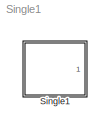
MODEL Single1
KIND model
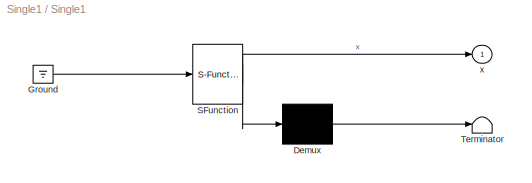
BLOCK [SubSystem] Single1
  MaskDescription = Stateflow diagram
  MaskDisplay = plot(sf('Private','sfblk','xIcon'),sf('Private','sfblk','yIcon'));text(0.5,0,sf('Private', 'sfblk', 'tIcon'),'HorizontalAl','Center','VerticalAl','Bottom');
  MaskIconFrame = off
  MaskIconOpaque = off
  MaskIconRotate = none
  MaskIconUnits = autoscale
  MaskSelfModifiable = on
  MaskType = Stateflow
  MinAlgLoopOccurrences = off
  Ports = [0, 1]
  RTWSystemCode = Auto
  TreatAsAtomicUnit = off
BLOCK [Demux] Single1/ Demux 
  Outputs = 1
  Ports = [1, 1]
BLOCK [Ground] Single1/ Ground 
BLOCK [S-Function] Single1/ SFunction 
  FunctionName = sf_sfun
  PortCounts = [1 2]
  Ports = [1, 2]
  Tag = Stateflow S-Function Single1 1
BLOCK [Terminator] Single1/ Terminator 
BLOCK [Outport] Single1/x
  IconDisplay = Port number
LINE Single1/ Demux :1 -> Single1/ Terminator :1
LINE Single1/ Ground :1 -> Single1/ SFunction :1
LINE Single1/ SFunction :1 -> Single1/ Demux :1
LINE Single1/ SFunction :2 -> Single1/x:1
CHART Single1 states=1 transitions=0
  STATE_LABEL 'A/\\ndu: x++;'
